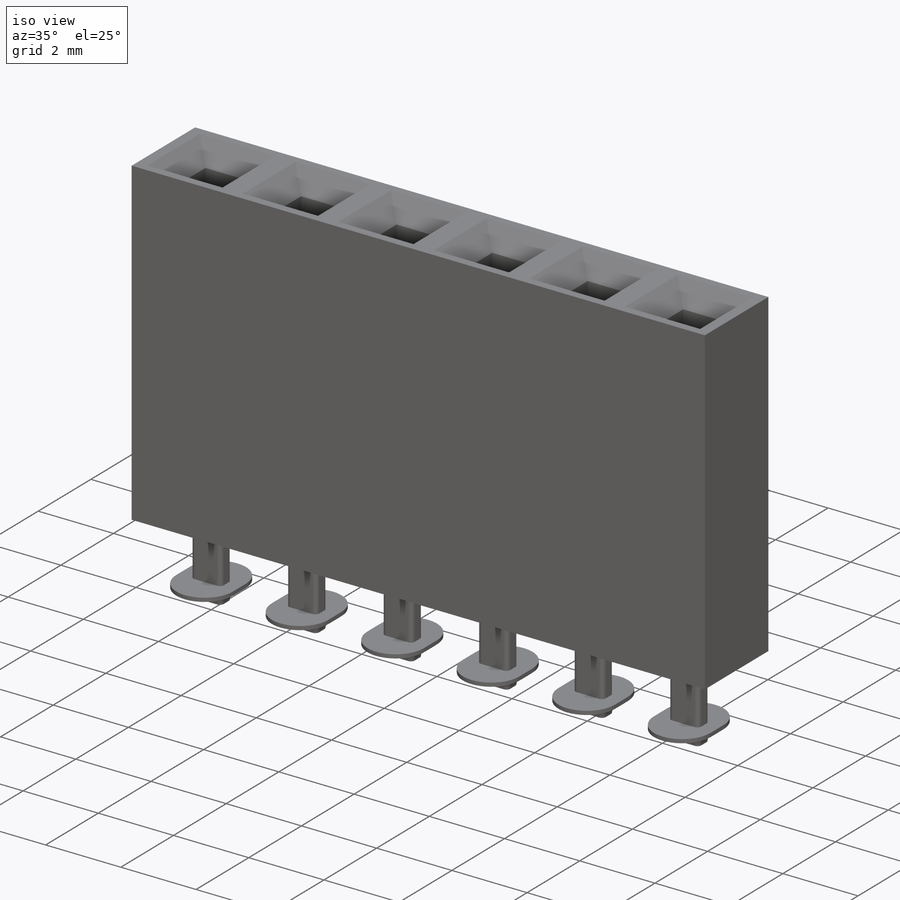
[diagram: iso view]
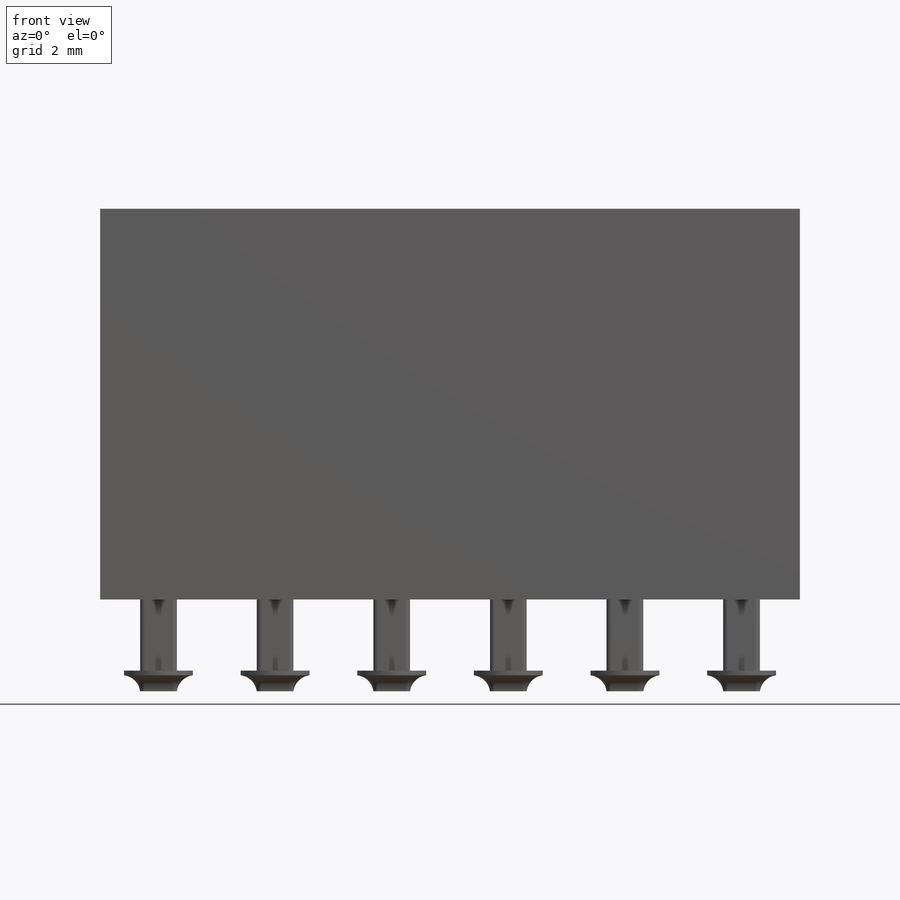
[diagram: front view]
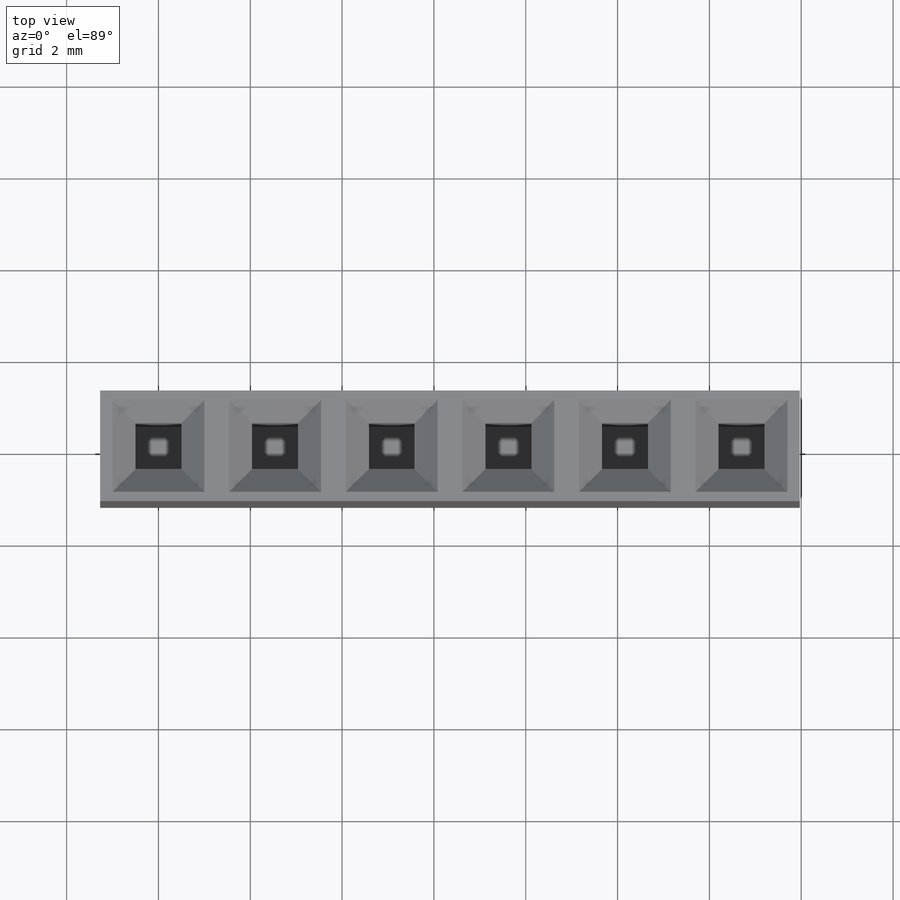
[diagram: top view]
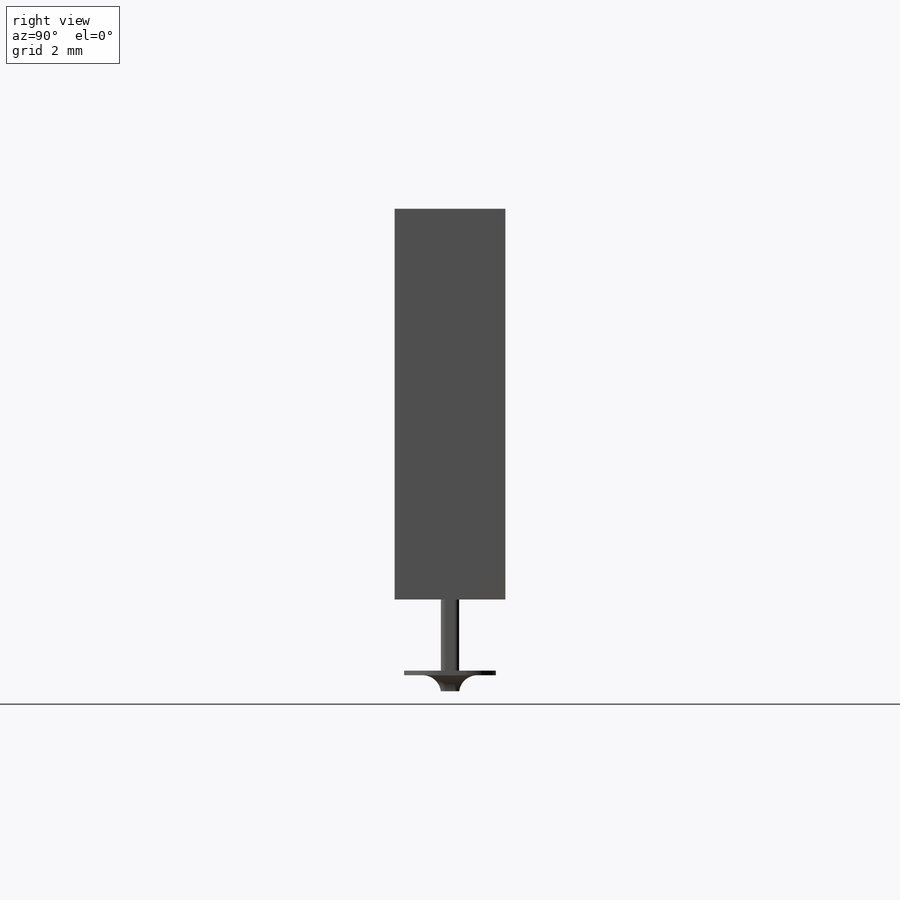
[diagram: right view]
SOLIDWORKS PART (.sldprt)
format: sldprt  version: not decoded by parser v0  size: 505,344 bytes
history: native  units: mm
features: sketch x4, extrude x3, pattern_linear x2, material x1, plane x1, cut_extrude x1, chamfer x1, fillet x1 (+11 scaffold rows collapsed)
feature tree (25):
  scaffold x11  (default folders/planes/origin — collapsed)
  material  "PA Type 6"
  plane  "Plane1"  Offset=1.65mm
  sketch  "Sketch2"  dims[D1=15.24mm D2=1.27mm D3=2.41mm D4=1.205mm]
  extrude  "Boss-Extrude1"  Depth=8.51mm
  sketch  "Sketch5"  dims[c1.D1=~2.163302mm c2.D1=90.0deg c3.D1=0.5mm c3.D2=1.0mm c3.D3=0.5mm]
  cut_extrude  "Cut-Extrude1"  Depth=5mm
  chamfer  "Chamfer1"  Distance=0.5mm Angle=45deg
  pattern_linear  "LPattern3"  Count1=6 Count2=1 Spacing1=2.54mm Spacing2=10mm
  sketch  "Sketch8"  dims[D5=0.1mm D1=0.4mm D2=0.8mm D3=0.4mm D4=0.2mm]
  extrude  "Boss-Extrude2"  Depth=2mm
  sketch  "Sketch10"  dims[D1=1.5mm D2=0.5mm]
  extrude  "Boss-Extrude3"  Depth=0.1mm
  fillet  "Fillet2"  Radius=0.4mm
  pattern_linear  "Répétition linéaire1"  Count1=6 Count2=1 Spacing1=2.54mm Spacing2=10mm
decode coverage: 12 of 12 modeling features carry decoded parameters
note: ~ marks probable driven/reference dimensions
note: suppression state not decoded; provenance and decode notes live in map.json
